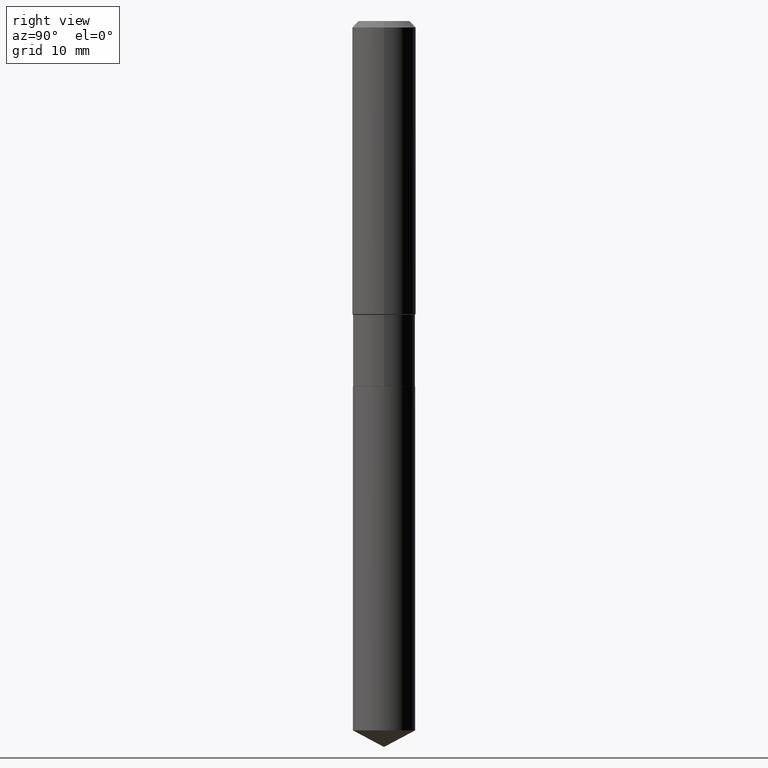
[diagram: clean part render]
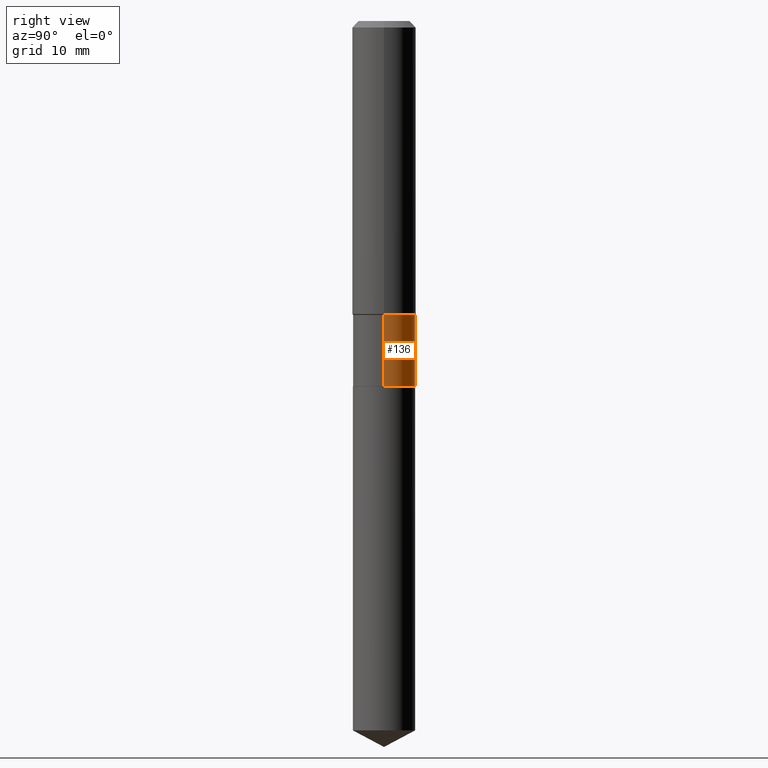
[diagram: same view with one face highlighted and labeled with its STEP entity id]
A machine part, right view. The second image highlights one B-rep face of the part: STEP entity #136.
In plain terms, the highlighted cylindrical surface (edge-blend (fillet) strip) has radius 3.9002 mm, axis along (-0, 0, 1).
Its self-contained STEP definition (entity closure, byte-faithful):
#4 = EDGE_CURVE ( 'NONE', #477, #212, #108, .T. ) ;
#11 = LINE ( 'NONE', #153, #125 ) ;
#14 = CARTESIAN_POINT ( 'NONE',  ( -0.1535499999999999643, 1.091038370759633582E-15, -7.553024831086406471E-30 ) ) ;
#46 = CARTESIAN_POINT ( 'NONE',  ( 0.000000000000000000, 0.000000000000000000, 0.000000000000000000 ) ) ;
#47 = ORIENTED_EDGE ( 'NONE', *, *, #265, .F. ) ;
#52 = DIRECTION ( 'NONE',  ( -2.445468806185136597E-29, 3.491481338843145583E-15, 1.000000000000000000 ) ) ;
#65 = DIRECTION ( 'NONE',  ( -2.445468806185136597E-29, 3.491481338843145583E-15, 1.000000000000000000 ) ) ;
#89 = LINE ( 'NONE', #14, #325 ) ;
#108 = CIRCLE ( 'NONE', #270, 0.1535499999999999921 ) ;
#125 = VECTOR ( 'NONE', #379, 39.37007874015748143 ) ;
#136 = ADVANCED_FACE ( 'NONE', ( #420 ), #240, .T. ) ;
#145 = EDGE_CURVE ( 'NONE', #477, #471, #11, .T. ) ;
#153 = CARTESIAN_POINT ( 'NONE',  ( 0.1535499999999999643, -1.072233919158725949E-15, 7.487369439234657779E-30 ) ) ;
#157 = CARTESIAN_POINT ( 'NONE',  ( 0.1535499999999999365, -6.134881860481286866E-15, -1.450000000000000178 ) ) ;
#199 = CARTESIAN_POINT ( 'NONE',  ( -0.1535499999999999365, -4.587332304667917085E-15, -1.450000000000000178 ) ) ;
#203 = AXIS2_PLACEMENT_3D ( 'NONE', #210, #65, #352 ) ;
#210 = CARTESIAN_POINT ( 'NONE',  ( 3.545929768968448850E-29, -5.062647941322561509E-15, -1.450000000000000178 ) ) ;
#212 = VERTEX_POINT ( 'NONE', #271 ) ;
#228 = VERTEX_POINT ( 'NONE', #199 ) ;
#234 = ORIENTED_EDGE ( 'NONE', *, *, #4, .T. ) ;
#240 = CYLINDRICAL_SURFACE ( 'NONE', #396, 0.1535499999999999643 ) ;
#246 = EDGE_LOOP ( 'NONE', ( #234, #483, #47, #300 ) ) ;
#247 = CARTESIAN_POINT ( 'NONE',  ( 0.1535499999999999921, -7.366327328691265182E-15, -1.802700000000000191 ) ) ;
#265 = EDGE_CURVE ( 'NONE', #471, #228, #405, .T. ) ;
#270 = AXIS2_PLACEMENT_3D ( 'NONE', #448, #485, #328 ) ;
#271 = CARTESIAN_POINT ( 'NONE',  ( -0.1535499999999999921, -4.587332304667917085E-15, -1.802700000000000191 ) ) ;
#300 = ORIENTED_EDGE ( 'NONE', *, *, #145, .F. ) ;
#325 = VECTOR ( 'NONE', #426, 39.37007874015748143 ) ;
#328 = DIRECTION ( 'NONE',  ( 1.000000000000000000, -6.982962677686269077E-15, 0.000000000000000000 ) ) ;
#352 = DIRECTION ( 'NONE',  ( 1.000000000000000000, -6.982962677686265133E-15, 0.000000000000000000 ) ) ;
#379 = DIRECTION ( 'NONE',  ( -2.445468806185136877E-29, 3.491481338843145188E-15, 1.000000000000000000 ) ) ;
#396 = AXIS2_PLACEMENT_3D ( 'NONE', #46, #52, #408 ) ;
#405 = CIRCLE ( 'NONE', #203, 0.1535499999999999365 ) ;
#408 = DIRECTION ( 'NONE',  ( 1.000000000000000000, -6.982962677686266711E-15, 4.876176775795935793E-29 ) ) ;
#420 = FACE_OUTER_BOUND ( 'NONE', #246, .T. ) ;
#426 = DIRECTION ( 'NONE',  ( -2.445468806185136877E-29, 3.491481338843145188E-15, 1.000000000000000000 ) ) ;
#433 = EDGE_CURVE ( 'NONE', #212, #228, #89, .T. ) ;
#448 = CARTESIAN_POINT ( 'NONE',  ( 4.408446616909946105E-29, -6.294093409532539036E-15, -1.802700000000000191 ) ) ;
#471 = VERTEX_POINT ( 'NONE', #157 ) ;
#477 = VERTEX_POINT ( 'NONE', #247 ) ;
#483 = ORIENTED_EDGE ( 'NONE', *, *, #433, .T. ) ;
#485 = DIRECTION ( 'NONE',  ( -2.445468806185136597E-29, 3.491481338843145583E-15, 1.000000000000000000 ) ) ;